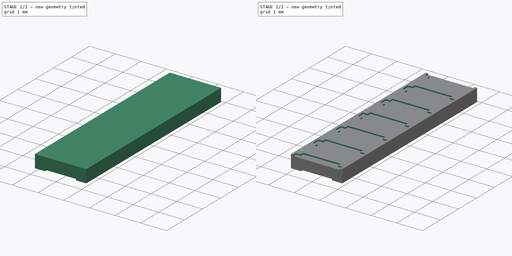
[diagram: build sequence overview — one tinted view per stage of 2, left to right]
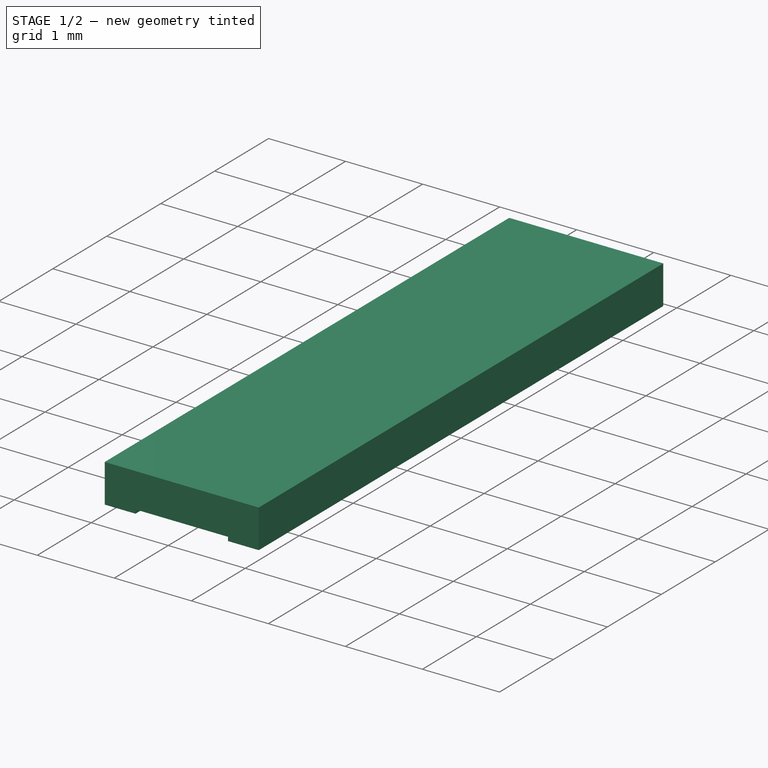
[diagram: stage 1 of 2 — iso view after this stage's code; geometry added in this stage tinted green]
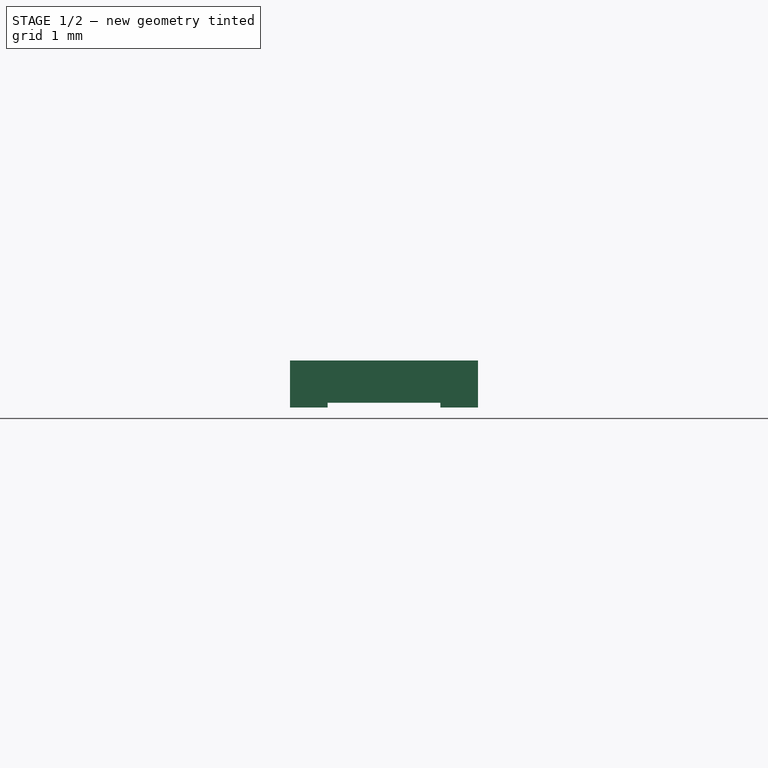
[diagram: stage 1 of 2 — front view after this stage's code; geometry added in this stage tinted green]
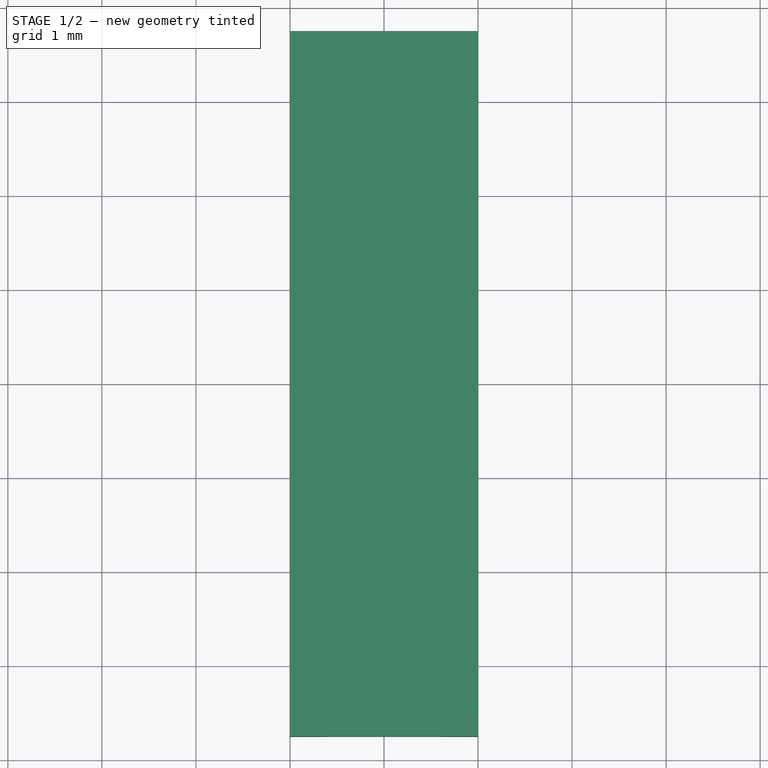
[diagram: stage 1 of 2 — top view after this stage's code; geometry added in this stage tinted green]
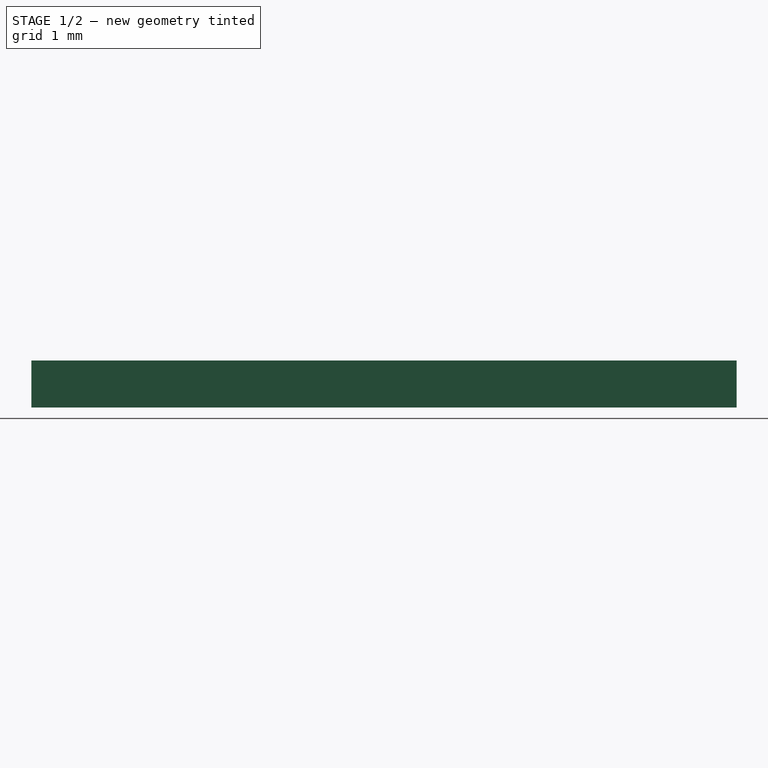
[diagram: stage 1 of 2 — right view after this stage's code; geometry added in this stage tinted green]
FCSTD DOCUMENT  (FreeCAD 0.20R29177 (Git))
Label: rl7520
License: All rights reserved
LicenseURL: http://en.wikipedia.org/wiki/All_rights_reserved
objects: Sketcher::SketchObject×3, PartDesign::Pad×2, PartDesign::Body×2, Spreadsheet::Sheet×1, PartDesign::Pocket×1, PartDesign::LinearPattern×1
note: 12 computed .brp shape members not serialized (recipe doc carries the construction recipe); baked Part::Feature solids carry a one-line shape summary decoded from their .brp

FEATURE [Spreadsheet::Sheet] Spreadsheet  label="sh"
  cells = A1=RL7520W shunt resistor; A2=parameter; B2=value (mm); A3=dim_L; B3(dim_L)=7.5; A4=dim_W; B4(dim_W)=2; A5=dim_T; B5(dim_T)=0.5; A6=m_thickness; B6(m_thickness)=0.05; A7=dim_b; B7(dim_b)=0.4; A9=r_count; B9(r_count)=6; A10=r_pitch; B10(r_pitch)=1.245; A11=r_terminal_gap_l; B11(r_terminal_gap_l)=0.3; A12=r_element_gap_l; B12(r_element_gap_l)=0.595; A13=r_terminal_gap_w; B13(r_terminal_gap_w)=1.81; A14=r_element_gap_w; B14(r_element_gap_w)=1.454
FEATURE [Sketcher::SketchObject] Sketch
  FullyConstrained = true
  MapMode = 5
  Placement = pos=(0,0,0) rot=(1,0,0;1.5708rad)
  Support = -> [XZ_Plane]
  expr: Constraints[25] = <<sh>>.dim_W
  expr: Constraints[27] = <<sh>>.dim_b
  expr: Constraints[28] = <<sh>>.m_thickness
  expr: Constraints[29] = <<sh>>.m_thickness
  expr: Constraints[30] = <<sh>>.m_thickness
  expr: Constraints[31] = <<sh>>.dim_T
  sketch-geometry (12):
    g0: LineSegment StartX=-1 StartY=0.5 StartZ=0 EndX=1 EndY=0.5 EndZ=0
    g1: LineSegment StartX=1 StartY=0.5 StartZ=0 EndX=1 EndY=0 EndZ=0
    g2: LineSegment StartX=1 StartY=0 StartZ=0 EndX=0.6 EndY=0 EndZ=0
    g3: LineSegment StartX=-1 StartY=0 StartZ=0 EndX=-1 EndY=0.5 EndZ=0
    g4: LineSegment StartX=-0.95 StartY=0.45 StartZ=0 EndX=0.95 EndY=0.45 EndZ=0
    g5: LineSegment StartX=0.95 StartY=0.45 StartZ=0 EndX=0.95 EndY=0.05 EndZ=0
    g6: LineSegment StartX=0.95 StartY=0.05 StartZ=0 EndX=0.6 EndY=0.05 EndZ=0
    g7: LineSegment StartX=-0.95 StartY=0.05 StartZ=0 EndX=-0.95 EndY=0.45 EndZ=0
    g8: LineSegment StartX=0.6 StartY=0.05 StartZ=0 EndX=0.6 EndY=0 EndZ=0
    g9: LineSegment StartX=-0.6 StartY=0.05 StartZ=0 EndX=-0.6 EndY=0 EndZ=0
    g10: LineSegment StartX=-0.6 StartY=0.05 StartZ=0 EndX=-0.95 EndY=0.05 EndZ=0
    g11: LineSegment StartX=-0.6 StartY=0 StartZ=0 EndX=-1 EndY=0 EndZ=0
  constraints (33):
    c: Coincident(g0,g1)
    c: Coincident(g1,g2)
    c: Coincident(g11,g3)
    c: Coincident(g3,g0)
    c: Horizontal(g0)
    c: Horizontal(g2)
    c: Vertical(g1)
    c: Vertical(g3)
    c: Coincident(g4,g5)
    c: Coincident(g5,g6)
    c: Coincident(g10,g7)
    c: Coincident(g7,g4)
    c: Horizontal(g4)
    c: Horizontal(g6)
    c: Vertical(g5)
    c: Vertical(g7)
    c: Vertical(g8)
    c: Vertical(g9)
    c: Coincident(g6,g8)
    c: Coincident(g10,g9)
    c: Coincident(g2,g8)
    c: Coincident(g11,g9)
    c: Symmetric(g9,g2,g-2)
    c: Symmetric(g5,g7,g-2)
    c: Symmetric(g1,g3,g-2)
    c: DistanceX(g0,g0) = 2
    c: Horizontal(g10)
    c: DistanceX(g2,g2) = 0.4
    c: DistanceY(g8,g8) = 0.05
    c: Distance(g4,g0) = 0.05
    c: Distance(g5,g1) = 0.05
    c: DistanceY(g3,g3) = 0.5
    c: PointOnObject(g9,g-1)
FEATURE [PartDesign::Pad] Pad
  Direction = (0,-1,2e-16)
  Length = 7.5
  Length2 = 10
  Midplane = true
  Placement = pos=(0,0,0) rot=(1,0,0;1.5708rad)
  Profile = -> Sketch
  ReferenceAxis = -> Sketch [N_Axis]
  Type = 0
  expr: Length = <<sh>>.dim_L
FEATURE [PartDesign::Body] Body  label="metalFilm"
  Group = -> [Sketch,Pad,Sketch001,Pocket,LinearPattern]
  Origin = -> Origin
  Tip = -> LinearPattern
FEATURE [Sketcher::SketchObject] Sketch002
  FullyConstrained = true
  MapMode = 5
  Placement = pos=(0,0,0) rot=(1,0,0;1.5708rad)
  Support = -> [XZ_Plane001]
  expr: Constraints[10] = <<sh>>.dim_W - 2 * <<sh>>.m_thickness
  expr: Constraints[8] = <<sh>>.m_thickness
  expr: Constraints[9] = <<sh>>.dim_T - 2 * <<sh>>.m_thickness
  sketch-geometry (4):
    g0: LineSegment StartX=-0.95 StartY=0.45 StartZ=0 EndX=0.95 EndY=0.45 EndZ=0
    g1: LineSegment StartX=0.95 StartY=0.45 StartZ=0 EndX=0.95 EndY=0.05 EndZ=0
    g2: LineSegment StartX=0.95 StartY=0.05 StartZ=0 EndX=-0.95 EndY=0.05 EndZ=0
    g3: LineSegment StartX=-0.95 StartY=0.05 StartZ=0 EndX=-0.95 EndY=0.45 EndZ=0
  constraints (11):
    c: Coincident(g0,g1)
    c: Coincident(g1,g2)
    c: Coincident(g2,g3)
    c: Coincident(g3,g0)
    c: Horizontal(g0)
    c: Vertical(g1)
    c: Vertical(g3)
    c: Symmetric(g2,g1,g-2)
    c: Distance(g-1,g2) = 0.05
    c: DistanceY(g3,g3) = 0.4
    c: DistanceX(g0,g0) = 1.9
FEATURE [PartDesign::Pad] Pad001
  Direction = (0,-1,2e-16)
  Length = 7.5
  Length2 = 10
  Midplane = true
  Placement = pos=(0,0,0) rot=(1,0,0;1.5708rad)
  Profile = -> Sketch002
  ReferenceAxis = -> Sketch002 [N_Axis]
  Type = 0
  expr: Length = <<sh>>.dim_L
FEATURE [PartDesign::Body] Body001  label="ceramicBody"
  Group = -> [Sketch002,Pad001]
  Origin = -> Origin001
  Tip = -> Pad001
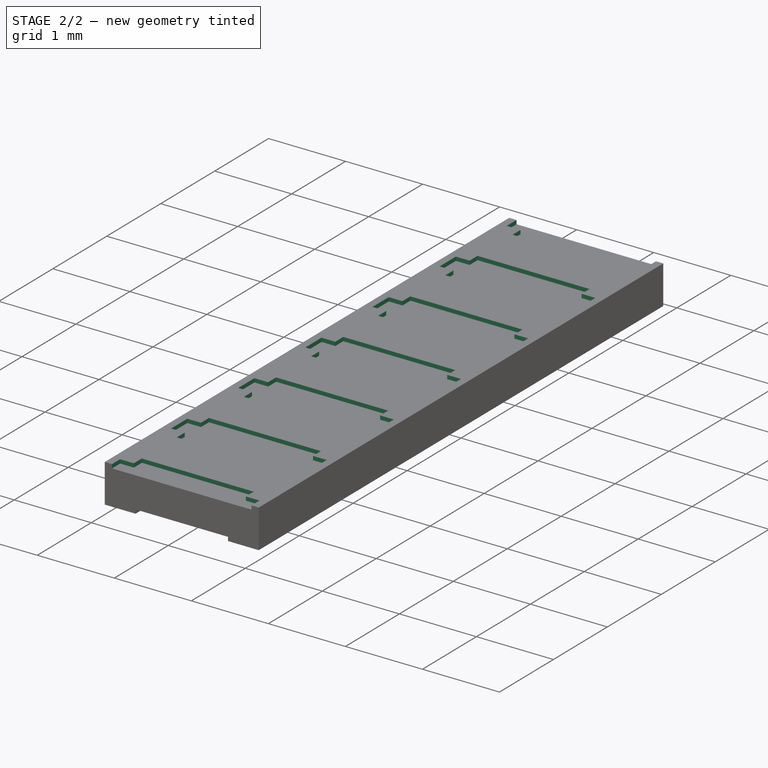
[diagram: stage 2 of 2 — iso view after this stage's code; geometry added in this stage tinted green]
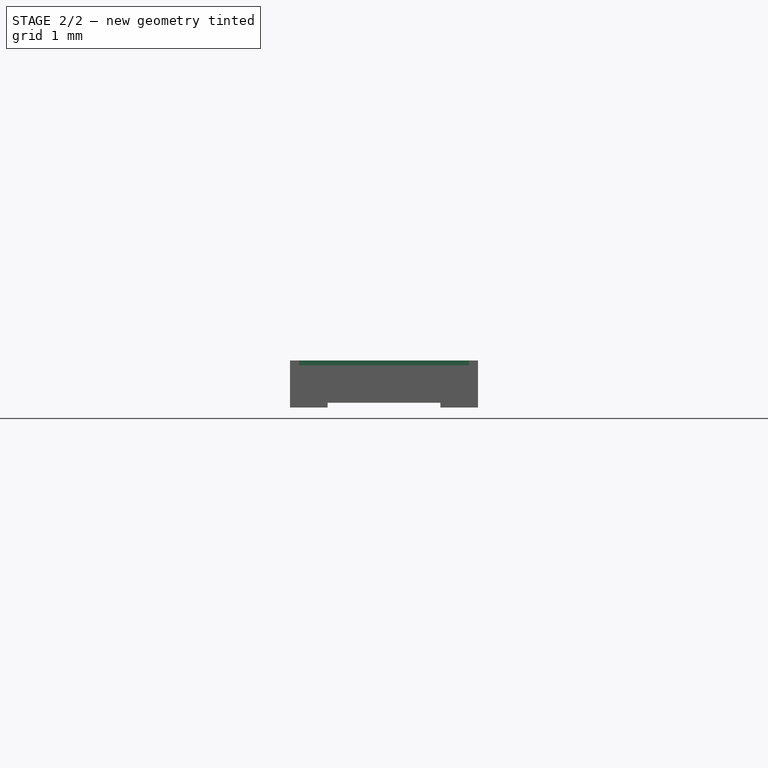
[diagram: stage 2 of 2 — front view after this stage's code; geometry added in this stage tinted green]
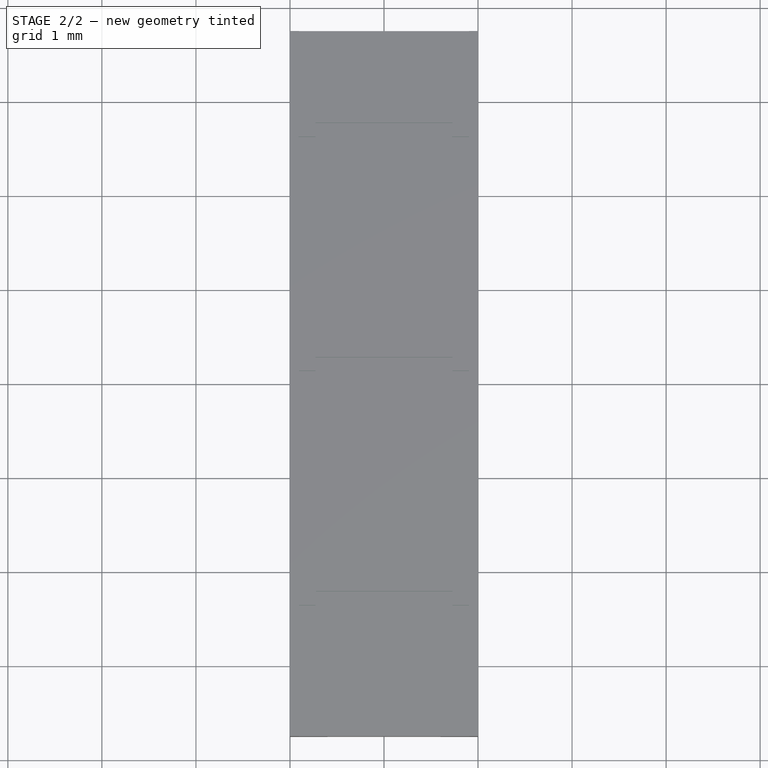
[diagram: stage 2 of 2 — top view after this stage's code; geometry added in this stage tinted green]
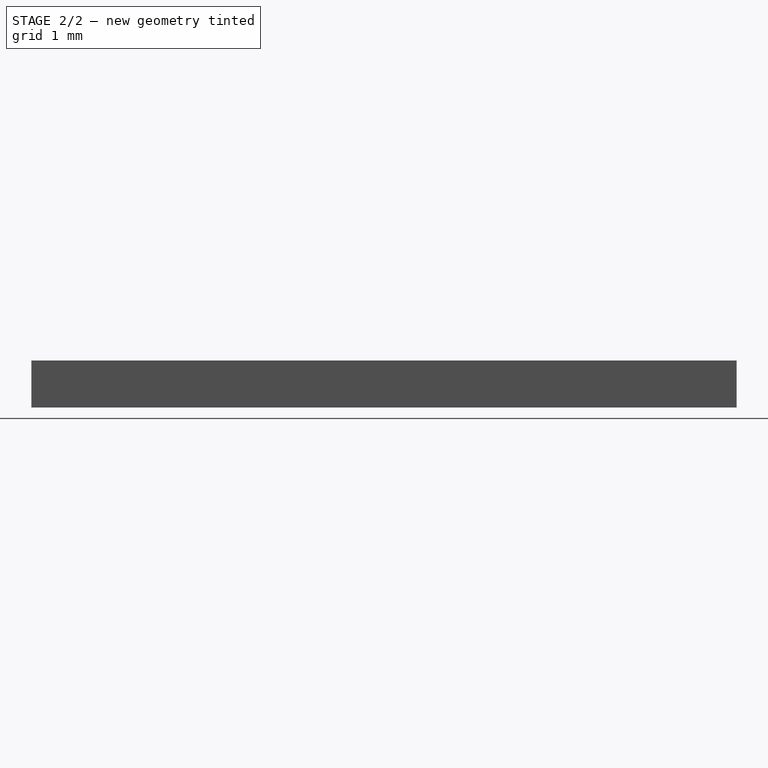
[diagram: stage 2 of 2 — right view after this stage's code; geometry added in this stage tinted green]
FEATURE [Sketcher::SketchObject] Sketch001
  FullyConstrained = false
  Placement = pos=(0,0,0.5) rot=(0,0,1;0rad)
  expr: .Placement.Base.z = <<sh>>.dim_T
  expr: Constraints[29] = Spreadsheet.r_terminal_gap_l
  expr: Constraints[30] = Spreadsheet.r_element_gap_l
  expr: Constraints[31] = <<sh>>.dim_L / 2
  expr: Constraints[32] = <<sh>>.r_element_gap_w
  expr: Constraints[33] = <<sh>>.r_terminal_gap_w
  sketch-geometry (13):
    g0: LineSegment StartX=-0.905 StartY=-3.6 StartZ=0 EndX=-0.727 EndY=-3.6 EndZ=0
    g1: LineSegment StartX=0.905 StartY=-3.6 StartZ=0 EndX=0.905 EndY=-3.9 EndZ=0
    g2: LineSegment StartX=0.905 StartY=-3.9 StartZ=0 EndX=0.727 EndY=-3.9 EndZ=0
    g3: LineSegment StartX=-0.905 StartY=-3.9 StartZ=0 EndX=-0.905 EndY=-3.6 EndZ=0
    g4: LineSegment StartX=0.727 StartY=-3.6 StartZ=0 EndX=0.727 EndY=-3.4525 EndZ=0
    g5: LineSegment StartX=0.727 StartY=-3.4525 StartZ=0 EndX=-0.727 EndY=-3.4525 EndZ=0
    g6: LineSegment StartX=-0.727 StartY=-3.4525 StartZ=0 EndX=-0.727 EndY=-3.6 EndZ=0
    g7: LineSegment StartX=0.727 StartY=-3.9 StartZ=0 EndX=0.727 EndY=-4.0475 EndZ=0
    g8: LineSegment StartX=0.727 StartY=-4.0475 StartZ=0 EndX=-0.727 EndY=-4.0475 EndZ=0
    g9: LineSegment StartX=-0.727 StartY=-4.0475 StartZ=0 EndX=-0.727 EndY=-3.9 EndZ=0
    g10: LineSegment StartX=0.727 StartY=-3.6 StartZ=0 EndX=0.905 EndY=-3.6 EndZ=0
    g11: LineSegment StartX=-0.727 StartY=-3.9 StartZ=0 EndX=-0.905 EndY=-3.9 EndZ=0
    g12: LineSegment StartX=-1.01456 StartY=-3.75 StartZ=0 EndX=1.24999 EndY=-3.75 EndZ=0
  constraints (34):
    c: Coincident(g10,g1)
    c: Coincident(g1,g2)
    c: Coincident(g11,g3)
    c: Coincident(g3,g0)
    c: Horizontal(g0)
    c: Horizontal(g2)
    c: Vertical(g1)
    c: Vertical(g3)
    c: Coincident(g4,g5)
    c: Coincident(g5,g6)
    c: Vertical(g4)
    c: Vertical(g6)
    c: Coincident(g7,g8)
    c: Coincident(g8,g9)
    c: Horizontal(g8)
    c: Vertical(g7)
    c: Vertical(g9)
    c: Coincident(g6,g0)
    c: Coincident(g4,g10)
    c: Coincident(g7,g2)
    c: Coincident(g11,g9)
    c: Horizontal(g11)
    c: Horizontal(g10)
    c: PointOnObject(g4,g7)
    c: Symmetric(g5,g4,g-2)
    c: Symmetric(g0,g1,g-2)
    c: Symmetric(g0,g3,g12)
    c: Symmetric(g5,g8,g12)
    c: PointOnObject(g2,g11)
    c: DistanceY(g1,g1) = 0.3
    c: Distance(g4,g7) = 0.595
    c: DistanceY(g12,g-1) = 3.75
    c: DistanceX(g8,g8) = 1.454
    c: Distance(g3,g1) = 1.81
FEATURE [PartDesign::Pocket] Pocket
  BaseFeature = -> Pad
  Direction = (0,0,-1)
  Length = 0.055
  Length2 = 5
  Placement = pos=(0,0,0) rot=(1,0,0;1.5708rad)
  Profile = -> Sketch001
  ReferenceAxis = -> Sketch001 [N_Axis]
  Type = 0
  expr: Length = <<sh>>.m_thickness * 1.1
FEATURE [PartDesign::LinearPattern] LinearPattern
  BaseFeature = -> Pocket
  Direction = -> Y_Axis
  Length = 7.47
  Occurrences = 7
  Originals = -> [Pocket]
  Placement = pos=(0,0,0) rot=(1,0,0;1.5708rad)
  expr: Length = <<sh>>.r_pitch * <<sh>>.r_count
  expr: Occurrences = <<sh>>.r_count + 1
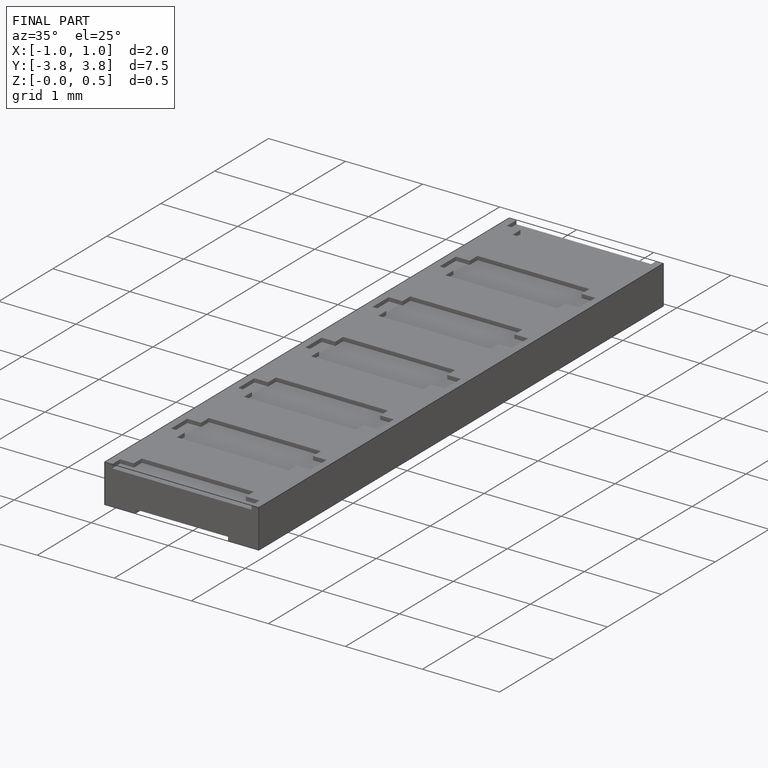
[diagram: finished part — iso view with bounding-box wireframe]
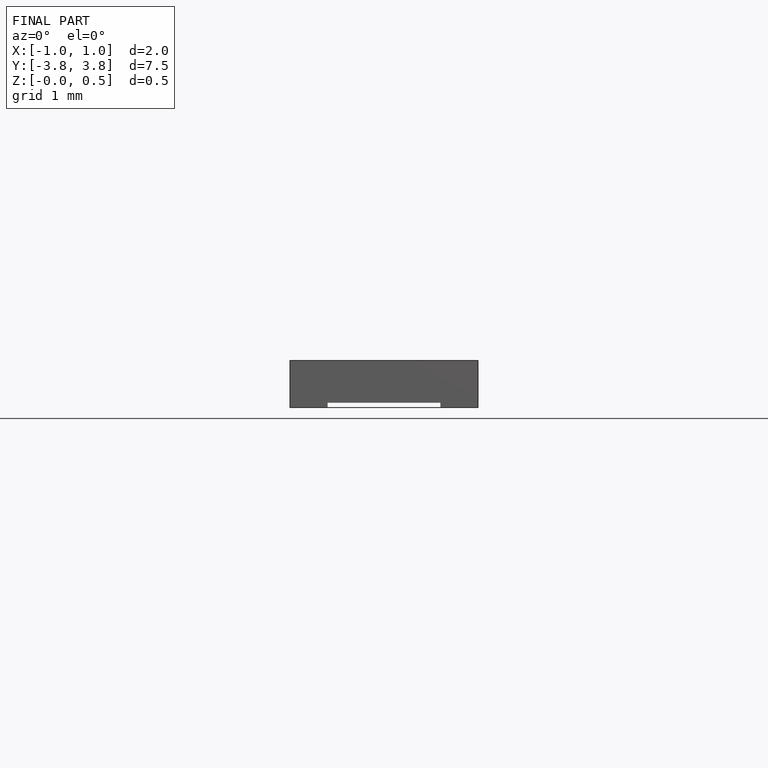
[diagram: finished part — front view with bounding-box wireframe]
